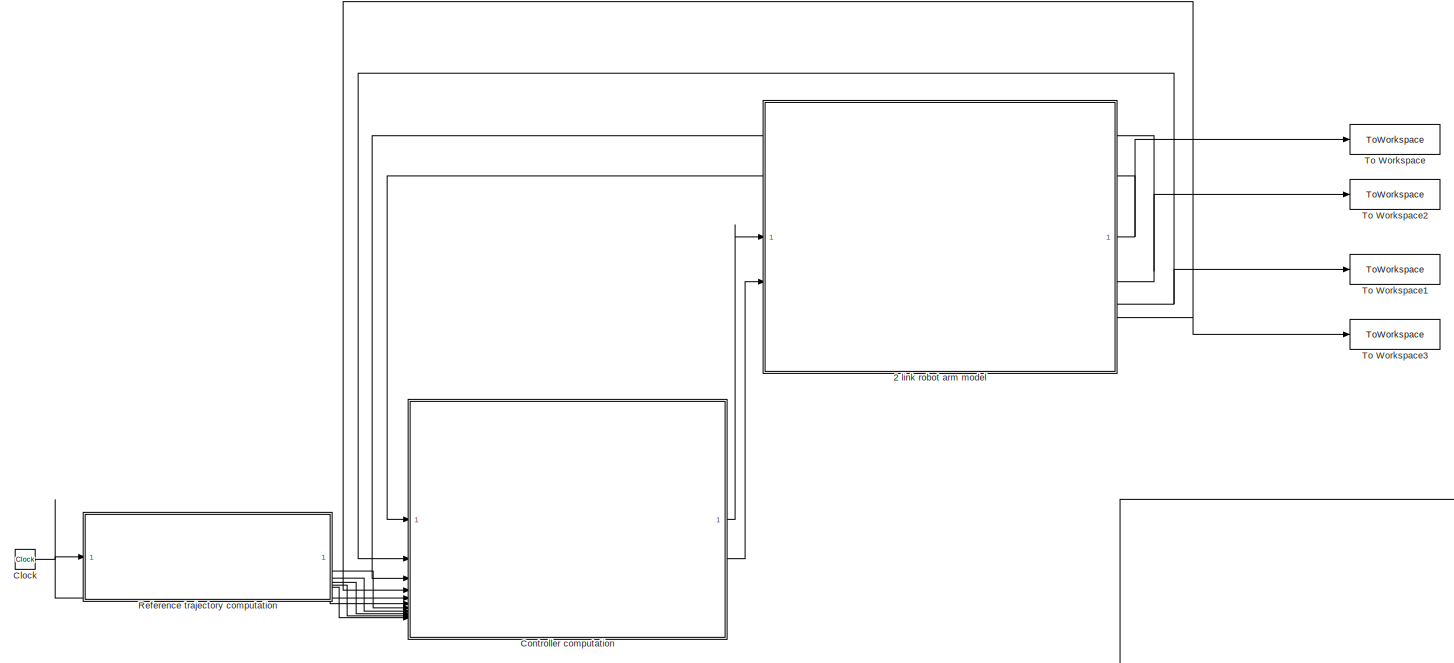
[diagram: root canvas - part 1/2, full width, middle band]
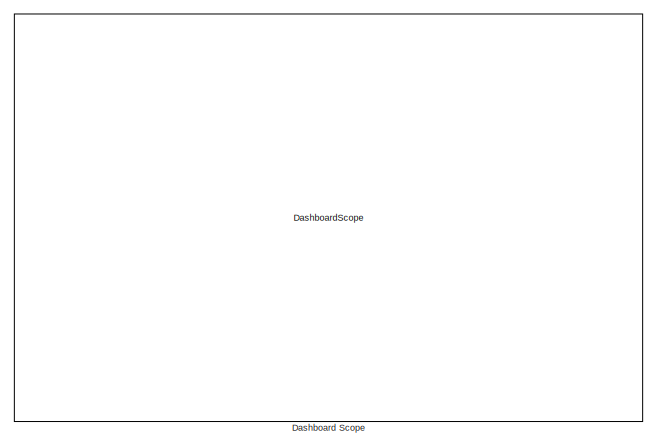
[diagram: root canvas - part 2/2, bottom right region]
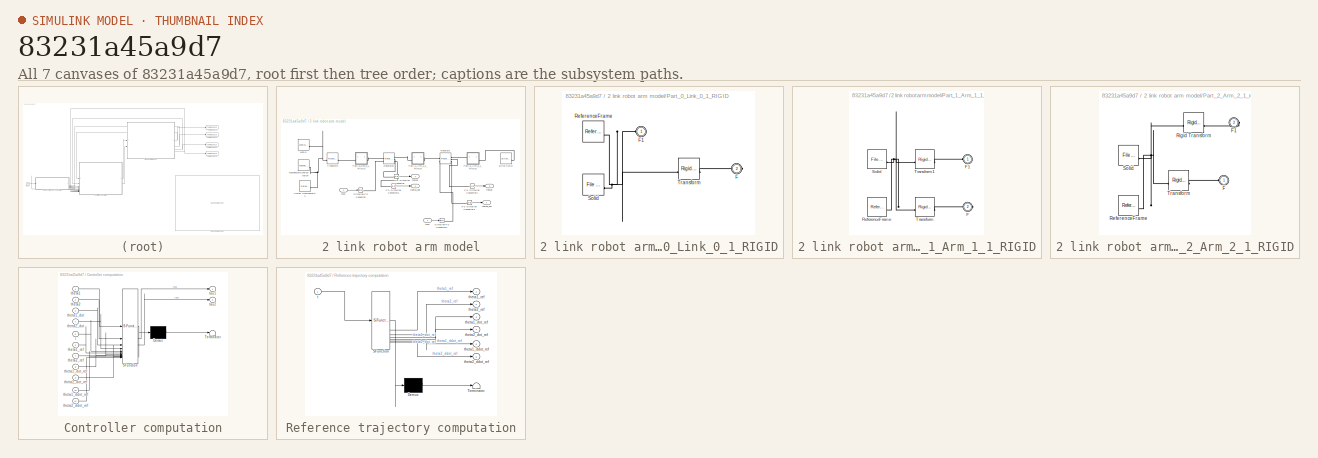
[diagram: thumbnail index - all 7 canvases of the model, root first then tree order]
MODEL slx_83231a45a9d7
KIND model
CONFIG AbsTol = auto
CONFIG EnableMultiTasking = off
CONFIG FixedStep = auto
CONFIG MaxStep = auto
CONFIG MinStep = auto
CONFIG RelTol = 1e-3
CONFIG SampleTimeConstraint = Unconstrained
CONFIG SolverName = VariableStepAuto
CONFIG StartTime = 0.0
CONFIG StopTime = 10
WORKSPACE source: external: MATLAB File  (data not in archive)
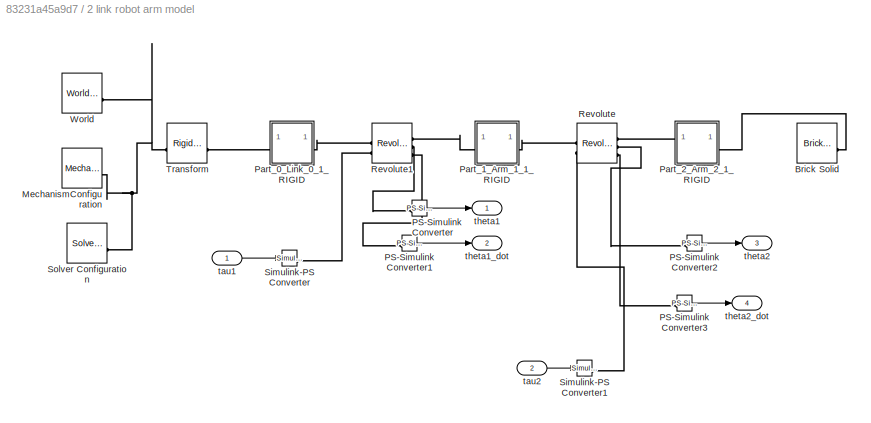
BLOCK [SubSystem] 2 link robot arm model
BLOCK [Reference] 2 link robot arm model/Brick Solid  REF=sm_lib/Body Elements/Brick Solid
  SourceBlock = sm_lib/Body Elements/Brick Solid
  SourceType = Brick Solid
BLOCK [Reference] 2 link robot arm model/MechanismConfiguration  REF=sm_lib/Utilities/Mechanism
Configuration
  SourceBlock = sm_lib/Utilities/Mechanism\nConfiguration
  SourceType = Mechanism\nConfiguration
BLOCK [Reference] 2 link robot arm model/PS-Simulink Converter  REF=nesl_utility/PS-Simulink
Converter
  SourceBlock = nesl_utility/PS-Simulink\nConverter
  SourceType = PS-Simulink\nConverter
BLOCK [Reference] 2 link robot arm model/PS-Simulink Converter1  REF=nesl_utility/PS-Simulink
Converter
  SourceBlock = nesl_utility/PS-Simulink\nConverter
  SourceType = PS-Simulink\nConverter
BLOCK [Reference] 2 link robot arm model/PS-Simulink Converter2  REF=nesl_utility/PS-Simulink
Converter
  SourceBlock = nesl_utility/PS-Simulink\nConverter
  SourceType = PS-Simulink\nConverter
BLOCK [Reference] 2 link robot arm model/PS-Simulink Converter3  REF=nesl_utility/PS-Simulink
Converter
  SourceBlock = nesl_utility/PS-Simulink\nConverter
  SourceType = PS-Simulink\nConverter
BLOCK [SubSystem] 2 link robot arm model/Part_0_Link_0_1_RIGID
BLOCK [PMIOPort] 2 link robot arm model/Part_0_Link_0_1_RIGID/F
  Port = 2
  Side = Right
BLOCK [PMIOPort] 2 link robot arm model/Part_0_Link_0_1_RIGID/F1
  Side = Left
BLOCK [Reference] 2 link robot arm model/Part_0_Link_0_1_RIGID/ReferenceFrame  REF=sm_lib/Frames and
Transforms/Reference
Frame
  SourceBlock = sm_lib/Frames and\nTransforms/Reference\nFrame
  SourceType = Reference\nFrame
BLOCK [Reference] 2 link robot arm model/Part_0_Link_0_1_RIGID/Solid  REF=sm_lib/Body Elements/File Solid
  SourceBlock = sm_lib/Body Elements/File Solid
  SourceType = File Solid
BLOCK [Reference] 2 link robot arm model/Part_0_Link_0_1_RIGID/Transform  REF=sm_lib/Frames and
Transforms/Rigid
Transform
  SourceBlock = sm_lib/Frames and\nTransforms/Rigid\nTransform
  SourceType = Rigid\nTransform
BLOCK [SubSystem] 2 link robot arm model/Part_1_Arm_1_1_RIGID
BLOCK [PMIOPort] 2 link robot arm model/Part_1_Arm_1_1_RIGID/F
  Port = 2
  Side = Right
BLOCK [PMIOPort] 2 link robot arm model/Part_1_Arm_1_1_RIGID/F1
  Side = Left
BLOCK [Reference] 2 link robot arm model/Part_1_Arm_1_1_RIGID/ReferenceFrame  REF=sm_lib/Frames and
Transforms/Reference
Frame
  SourceBlock = sm_lib/Frames and\nTransforms/Reference\nFrame
  SourceType = Reference\nFrame
BLOCK [Reference] 2 link robot arm model/Part_1_Arm_1_1_RIGID/Solid  REF=sm_lib/Body Elements/File Solid
  SourceBlock = sm_lib/Body Elements/File Solid
  SourceType = File Solid
BLOCK [Reference] 2 link robot arm model/Part_1_Arm_1_1_RIGID/Transform  REF=sm_lib/Frames and
Transforms/Rigid
Transform
  SourceBlock = sm_lib/Frames and\nTransforms/Rigid\nTransform
  SourceType = Rigid\nTransform
BLOCK [Reference] 2 link robot arm model/Part_1_Arm_1_1_RIGID/Transform1  REF=sm_lib/Frames and
Transforms/Rigid
Transform
  SourceBlock = sm_lib/Frames and\nTransforms/Rigid\nTransform
  SourceType = Rigid\nTransform
BLOCK [SubSystem] 2 link robot arm model/Part_2_Arm_2_1_RIGID
BLOCK [PMIOPort] 2 link robot arm model/Part_2_Arm_2_1_RIGID/F
  Side = Left
BLOCK [PMIOPort] 2 link robot arm model/Part_2_Arm_2_1_RIGID/F1
  Port = 2
  Side = Right
BLOCK [Reference] 2 link robot arm model/Part_2_Arm_2_1_RIGID/ReferenceFrame  REF=sm_lib/Frames and
Transforms/Reference
Frame
  SourceBlock = sm_lib/Frames and\nTransforms/Reference\nFrame
  SourceType = Reference\nFrame
BLOCK [Reference] 2 link robot arm model/Part_2_Arm_2_1_RIGID/Rigid Transform  REF=sm_lib/Frames and
Transforms/Rigid
Transform
  SourceBlock = sm_lib/Frames and\nTransforms/Rigid\nTransform
  SourceType = Rigid\nTransform
BLOCK [Reference] 2 link robot arm model/Part_2_Arm_2_1_RIGID/Solid  REF=sm_lib/Body Elements/File Solid
  SourceBlock = sm_lib/Body Elements/File Solid
  SourceType = File Solid
BLOCK [Reference] 2 link robot arm model/Part_2_Arm_2_1_RIGID/Transform  REF=sm_lib/Frames and
Transforms/Rigid
Transform
  SourceBlock = sm_lib/Frames and\nTransforms/Rigid\nTransform
  SourceType = Rigid\nTransform
BLOCK [Reference] 2 link robot arm model/Revolute  REF=sm_lib/Joints/Revolute Joint
  SourceBlock = sm_lib/Joints/Revolute Joint
  SourceType = Revolute Joint
BLOCK [Reference] 2 link robot arm model/Revolute1  REF=sm_lib/Joints/Revolute Joint
  SourceBlock = sm_lib/Joints/Revolute Joint
  SourceType = Revolute Joint
BLOCK [Reference] 2 link robot arm model/Simulink-PS Converter  REF=nesl_utility/Simulink-PS
Converter
  SourceBlock = nesl_utility/Simulink-PS\nConverter
  SourceType = Simulink-PS\nConverter
BLOCK [Reference] 2 link robot arm model/Simulink-PS Converter1  REF=nesl_utility/Simulink-PS
Converter
  SourceBlock = nesl_utility/Simulink-PS\nConverter
  SourceType = Simulink-PS\nConverter
BLOCK [Reference] 2 link robot arm model/Solver Configuration  REF=nesl_utility/Solver
Configuration
  SourceBlock = nesl_utility/Solver\nConfiguration
  SourceType = Solver\nConfiguration
BLOCK [Reference] 2 link robot arm model/Transform  REF=sm_lib/Frames and
Transforms/Rigid
Transform
  SourceBlock = sm_lib/Frames and\nTransforms/Rigid\nTransform
  SourceType = Rigid\nTransform
BLOCK [Reference] 2 link robot arm model/World  REF=sm_lib/Frames and
Transforms/World Frame
  SourceBlock = sm_lib/Frames and\nTransforms/World Frame
  SourceType = World Frame
BLOCK [Inport] 2 link robot arm model/tau1
BLOCK [Inport] 2 link robot arm model/tau2
  Port = 2
BLOCK [Outport] 2 link robot arm model/theta1
BLOCK [Outport] 2 link robot arm model/theta1_dot
  Port = 2
BLOCK [Outport] 2 link robot arm model/theta2
  Port = 3
BLOCK [Outport] 2 link robot arm model/theta2_dot
  Port = 4
BLOCK [Clock] Clock
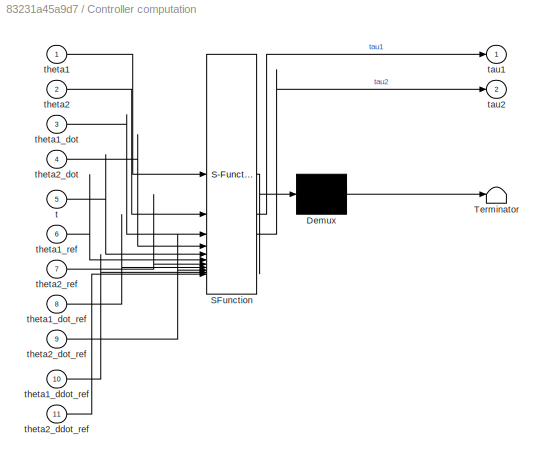
BLOCK [SubSystem] Controller computation
  ErrorFcn = Stateflow.Translate.translate
  PermitHierarchicalResolution = ExplicitOnly
  SFBlockType = MATLAB Function
  TreatAsAtomicUnit = on
BLOCK [Demux] Controller computation/ Demux 
  Outputs = 1
BLOCK [S-Function] Controller computation/ SFunction 
  EnableBusSupport = on
  FunctionName = sf_sfun
  PortCounts = [11 3]
  SFcnIsStateOwnerBlock = off
  SFunctionDeploymentMode = off
  Tag = Stateflow S-Function 2
BLOCK [Terminator] Controller computation/ Terminator 
BLOCK [Inport] Controller computation/t
  Port = 5
BLOCK [Outport] Controller computation/tau1
BLOCK [Outport] Controller computation/tau2
  Port = 2
BLOCK [Inport] Controller computation/theta1
BLOCK [Inport] Controller computation/theta1_ddot_ref
  Port = 10
BLOCK [Inport] Controller computation/theta1_dot
  Port = 3
BLOCK [Inport] Controller computation/theta1_dot_ref
  Port = 8
BLOCK [Inport] Controller computation/theta1_ref
  Port = 6
BLOCK [Inport] Controller computation/theta2
  Port = 2
BLOCK [Inport] Controller computation/theta2_ddot_ref
  Port = 11
BLOCK [Inport] Controller computation/theta2_dot
  Port = 4
BLOCK [Inport] Controller computation/theta2_dot_ref
  Port = 9
BLOCK [Inport] Controller computation/theta2_ref
  Port = 7
BLOCK [DashboardScope] Dashboard Scope
BLOCK [SubSystem] Reference trajectory computation
  ErrorFcn = Stateflow.Translate.translate
  PermitHierarchicalResolution = ExplicitOnly
  SFBlockType = MATLAB Function
  TreatAsAtomicUnit = on
BLOCK [Demux] Reference trajectory computation/ Demux 
  Outputs = 1
BLOCK [S-Function] Reference trajectory computation/ SFunction 
  EnableBusSupport = on
  FunctionName = sf_sfun
  PortCounts = [1 7]
  SFcnIsStateOwnerBlock = off
  SFunctionDeploymentMode = off
  Tag = Stateflow S-Function 1
BLOCK [Terminator] Reference trajectory computation/ Terminator 
BLOCK [Inport] Reference trajectory computation/t
BLOCK [Outport] Reference trajectory computation/theta1_ddot_ref
  Port = 5
BLOCK [Outport] Reference trajectory computation/theta1_dot_ref
  Port = 3
BLOCK [Outport] Reference trajectory computation/theta1_ref
BLOCK [Outport] Reference trajectory computation/theta2_ddot_ref
  Port = 6
BLOCK [Outport] Reference trajectory computation/theta2_dot_ref
  Port = 4
BLOCK [Outport] Reference trajectory computation/theta2_ref
  Port = 2
BLOCK [ToWorkspace] To Workspace
  FixptAsFi = on
  MaxDataPoints = inf
  SampleTime = -1
  Save2DSignal = 2-D array (concatenate along first dimension)
  VariableName = theta1
BLOCK [ToWorkspace] To Workspace1
  FixptAsFi = on
  MaxDataPoints = inf
  SampleTime = -1
  Save2DSignal = 2-D array (concatenate along first dimension)
  VariableName = theta2
BLOCK [ToWorkspace] To Workspace2
  FixptAsFi = on
  MaxDataPoints = inf
  SampleTime = -1
  Save2DSignal = 2-D array (concatenate along first dimension)
  VariableName = theta1_dot
BLOCK [ToWorkspace] To Workspace3
  FixptAsFi = on
  MaxDataPoints = inf
  SampleTime = -1
  Save2DSignal = 2-D array (concatenate along first dimension)
  VariableName = theta2_dot
LINE 2 link robot arm model/PS-Simulink Converter1:1 -> 2 link robot arm model/theta1_dot:1
LINE 2 link robot arm model/PS-Simulink Converter2:1 -> 2 link robot arm model/theta2:1
LINE 2 link robot arm model/PS-Simulink Converter3:1 -> 2 link robot arm model/theta2_dot:1
LINE 2 link robot arm model/PS-Simulink Converter:1 -> 2 link robot arm model/theta1:1
LINE 2 link robot arm model/tau1:1 -> 2 link robot arm model/Simulink-PS Converter:1
LINE 2 link robot arm model/tau2:1 -> 2 link robot arm model/Simulink-PS Converter1:1
NET 2 link robot arm model:1 -> Controller computation:1, To Workspace:1
NET 2 link robot arm model:2 -> Controller computation:3, To Workspace2:1
NET 2 link robot arm model:3 -> Controller computation:2, To Workspace1:1
NET 2 link robot arm model:4 -> Controller computation:4, To Workspace3:1
NET Clock:1 -> Controller computation:5, Reference trajectory computation:1
LINE Controller computation:1 -> 2 link robot arm model:1
LINE Controller computation:2 -> 2 link robot arm model:2
LINE Reference trajectory computation:1 -> Controller computation:6
LINE Reference trajectory computation:2 -> Controller computation:7
LINE Reference trajectory computation:3 -> Controller computation:8
LINE Reference trajectory computation:4 -> Controller computation:9
LINE Reference trajectory computation:5 -> Controller computation:10
LINE Reference trajectory computation:6 -> Controller computation:11
PLINE 2 link robot arm model/Brick Solid:RConn1 -- 2 link robot arm model/Part_2_Arm_2_1_RIGID:RConn1
PNET net1: 2 link robot arm model/MechanismConfiguration:RConn1 -- 2 link robot arm model/Solver Configuration:RConn1 -- 2 link robot arm model/Transform:LConn1 -- 2 link robot arm model/World:RConn1
PLINE 2 link robot arm model/PS-Simulink Converter1:LConn1 -- 2 link robot arm model/Revolute1:RConn3
PLINE 2 link robot arm model/PS-Simulink Converter2:LConn1 -- 2 link robot arm model/Revolute:RConn2
PLINE 2 link robot arm model/PS-Simulink Converter3:LConn1 -- 2 link robot arm model/Revolute:RConn3
PLINE 2 link robot arm model/PS-Simulink Converter:LConn1 -- 2 link robot arm model/Revolute1:RConn2
PNET net2: 2 link robot arm model/Part_0_Link_0_1_RIGID/F1:RConn1 -- 2 link robot arm model/Part_0_Link_0_1_RIGID/ReferenceFrame:RConn1 -- 2 link robot arm model/Part_0_Link_0_1_RIGID/Solid:RConn1 -- 2 link robot arm model/Part_0_Link_0_1_RIGID/Transform:LConn1
PLINE 2 link robot arm model/Part_0_Link_0_1_RIGID/F:RConn1 -- 2 link robot arm model/Part_0_Link_0_1_RIGID/Transform:RConn1
PLINE 2 link robot arm model/Part_0_Link_0_1_RIGID:LConn1 -- 2 link robot arm model/Transform:RConn1
PLINE 2 link robot arm model/Part_0_Link_0_1_RIGID:RConn1 -- 2 link robot arm model/Revolute1:LConn1
PLINE 2 link robot arm model/Part_1_Arm_1_1_RIGID/F1:RConn1 -- 2 link robot arm model/Part_1_Arm_1_1_RIGID/Transform1:RConn1
PLINE 2 link robot arm model/Part_1_Arm_1_1_RIGID/F:RConn1 -- 2 link robot arm model/Part_1_Arm_1_1_RIGID/Transform:RConn1
PNET net3: 2 link robot arm model/Part_1_Arm_1_1_RIGID/ReferenceFrame:RConn1 -- 2 link robot arm model/Part_1_Arm_1_1_RIGID/Solid:RConn1 -- 2 link robot arm model/Part_1_Arm_1_1_RIGID/Transform1:LConn1 -- 2 link robot arm model/Part_1_Arm_1_1_RIGID/Transform:LConn1
PLINE 2 link robot arm model/Part_1_Arm_1_1_RIGID:LConn1 -- 2 link robot arm model/Revolute1:RConn1
PLINE 2 link robot arm model/Part_1_Arm_1_1_RIGID:RConn1 -- 2 link robot arm model/Revolute:LConn1
PLINE 2 link robot arm model/Part_2_Arm_2_1_RIGID/F1:RConn1 -- 2 link robot arm model/Part_2_Arm_2_1_RIGID/Rigid Transform:RConn1
PLINE 2 link robot arm model/Part_2_Arm_2_1_RIGID/F:RConn1 -- 2 link robot arm model/Part_2_Arm_2_1_RIGID/Transform:RConn1
PNET net4: 2 link robot arm model/Part_2_Arm_2_1_RIGID/ReferenceFrame:RConn1 -- 2 link robot arm model/Part_2_Arm_2_1_RIGID/Rigid Transform:LConn1 -- 2 link robot arm model/Part_2_Arm_2_1_RIGID/Solid:RConn1 -- 2 link robot arm model/Part_2_Arm_2_1_RIGID/Transform:LConn1
PLINE 2 link robot arm model/Part_2_Arm_2_1_RIGID:LConn1 -- 2 link robot arm model/Revolute:RConn1
PLINE 2 link robot arm model/Revolute1:LConn2 -- 2 link robot arm model/Simulink-PS Converter:RConn1
PLINE 2 link robot arm model/Revolute:LConn2 -- 2 link robot arm model/Simulink-PS Converter1:RConn1
note: NET lines group one-source signal fan-out (src -> all destinations, sorted); 1:1 wires keep LINE; PNET lines group multi-terminal physical nets as a canonical sorted terminal list (undirected conserving connections); 2-terminal nets keep the pairwise PLINE form
CHART Reference trajectory computation states=1 transitions=1
  STATE_LABEL 'eML_blk_kernel()'
  STATE_LABEL 'SCRIPT:\nfunction [theta1_ref, theta2_ref, theta1_dot_ref, theta2_dot_ref, theta1_ddot_ref, theta2_ddot_ref] = generateTrajectory(t)\n% Inputs:\n    %   t - Current time (seconds)\n\n% Outputs:\n    %   theta1_ref, theta2_ref - Joint angle references (rad)\n    %   theta1_dot_ref, theta2_dot_ref - Joint velocity references (rad/s)\n    %   theta1_ddot_ref, theta2_ddot_ref - Joint acceleration references (...<+2805ch>'
CHART Controller computation states=1 transitions=1
  STATE_LABEL 'eML_blk_kernel()'
  STATE_LABEL 'SCRIPT:\nfunction [tau1, tau2] = computeFeedbackLinearizationTorque(theta1, theta2, theta1_dot, theta2_dot,t,theta1_ref,theta2_ref,theta1_dot_ref,theta2_dot_ref,theta1_ddot_ref,theta2_ddot_ref)\n    % COMPUTEFEEDBACKlinearizationtorque - Computes control torques using feedback linearization\n    %\n    % This function implements computed torque control (feedback linearization) for a\n    % two-link pla...<+2269ch>'
CHART  states=0 transitions=0
CHART  states=0 transitions=0
